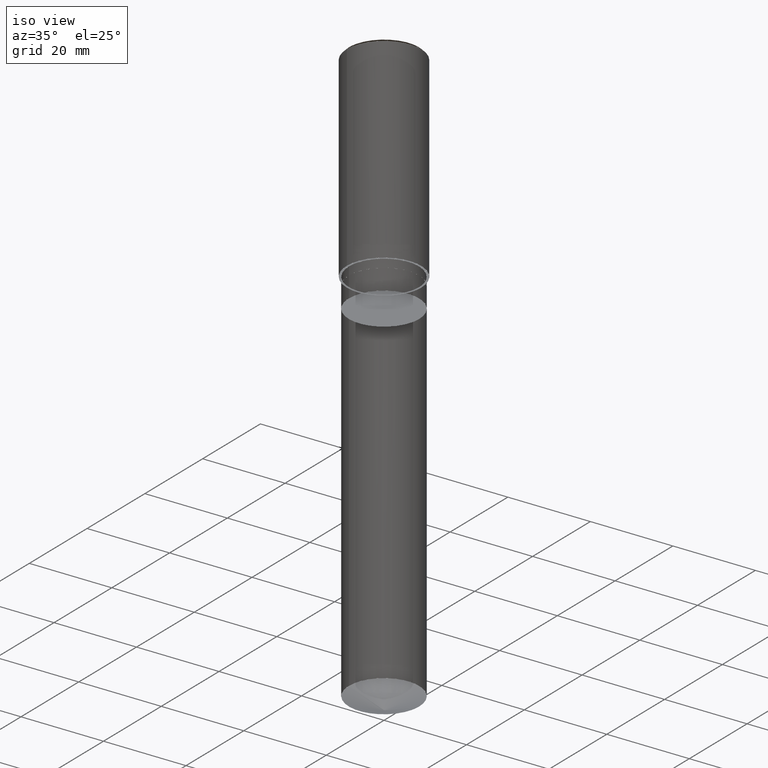
[diagram: clean part render]
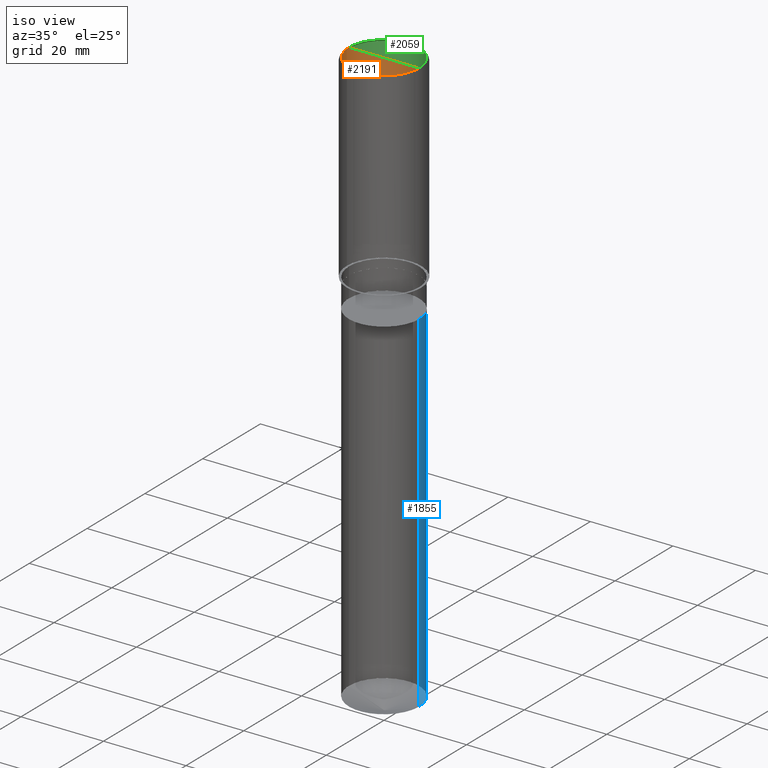
[diagram: same view with three faces highlighted in distinct colors, each labeled with its STEP entity id]
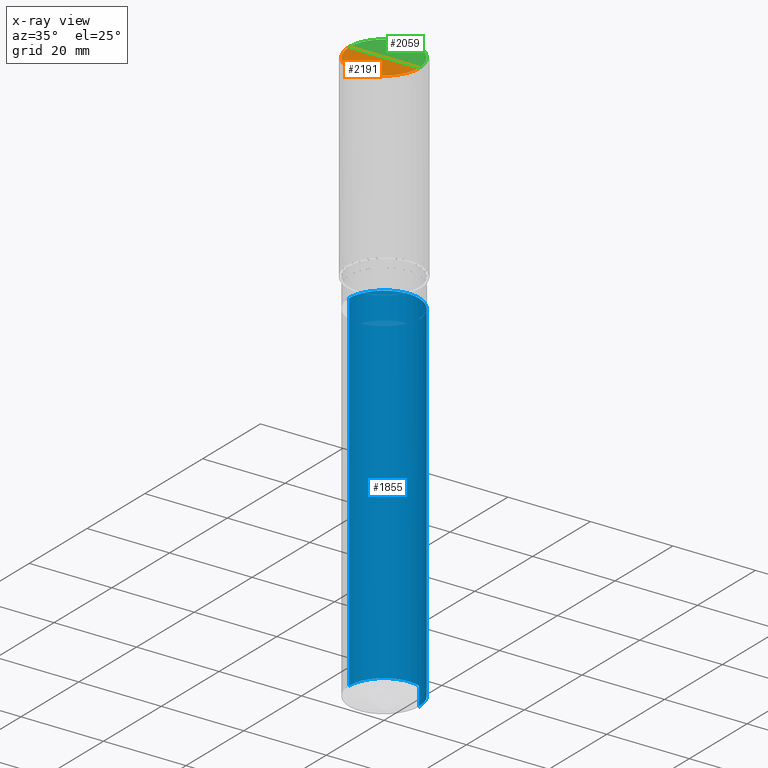
[diagram: x-ray of the same camera — body ghosted, the three highlighted faces saturated]
A machine part, iso view with three faces highlighted in distinct colors.
The next image is the same camera in x-ray (body ghosted, the three faces saturated) — at least one of them is partly hidden behind the body in this view.
Their STEP definitions:

[orange] entity #2191 — the highlighted face is a freeform B-spline surface patch.
#1794=CARTESIAN_POINT('',(8.5,0.0,48.0));
#1798=CARTESIAN_POINT('',(-8.5,0.0,48.0));
#1799=CARTESIAN_POINT('',(0.0,0.0,48.0));
#1812=CARTESIAN_POINT('',(-8.5,-8.5,48.0));
#1813=CARTESIAN_POINT('',(0.0,-8.5,48.0));
#1814=CARTESIAN_POINT('',(8.5,-8.5,48.0));
#2176=(
BOUNDED_SURFACE()
B_SPLINE_SURFACE(1,2,(
(#1798,#1812,#1813,#1814,#1794),
(#1799,#1799,#1799,#1799,#1799)
), .UNSPECIFIED.,.F.,.F.,.F.)
B_SPLINE_SURFACE_WITH_KNOTS((2,2),(3,2,3),(
0.0,1.0),(
0.0,0.5,1.0), .UNSPECIFIED.)
GEOMETRIC_REPRESENTATION_ITEM()
RATIONAL_B_SPLINE_SURFACE(((1.0,0.707106781187,1.0,0.707106781187,1.0),
(1.0,0.707106781187,1.0,0.707106781187,1.0)
))
REPRESENTATION_ITEM('')
SURFACE()
);
#2177=(
BOUNDED_CURVE()
B_SPLINE_CURVE(2,(#1794,#1814,#1813,#1812,#1798),.UNSPECIFIED.,.F.,.F.)
B_SPLINE_CURVE_WITH_KNOTS((3,2,3),
(0.0,0.5,1.0),.UNSPECIFIED.)
CURVE()
GEOMETRIC_REPRESENTATION_ITEM()
RATIONAL_B_SPLINE_CURVE((1.0,0.707106781187,1.0,0.707106781187,1.0))
REPRESENTATION_ITEM('')
);
#2178=(
BOUNDED_CURVE()
B_SPLINE_CURVE(1,(#1798,#1799),.UNSPECIFIED.,.F.,.F.)
B_SPLINE_CURVE_WITH_KNOTS((2,2),
(0.0,1.0),.UNSPECIFIED.)
CURVE()
GEOMETRIC_REPRESENTATION_ITEM()
RATIONAL_B_SPLINE_CURVE((1.0,1.0))
REPRESENTATION_ITEM('')
);
#2179=(
BOUNDED_CURVE()
B_SPLINE_CURVE(1,(#1799,#1794),.UNSPECIFIED.,.F.,.F.)
B_SPLINE_CURVE_WITH_KNOTS((2,2),
(0.0,1.0),.UNSPECIFIED.)
CURVE()
GEOMETRIC_REPRESENTATION_ITEM()
RATIONAL_B_SPLINE_CURVE((1.0,1.0))
REPRESENTATION_ITEM('')
);
#2180=VERTEX_POINT('',#1794);
#2181=VERTEX_POINT('',#1798);
#2182=VERTEX_POINT('',#1799);
#2183=EDGE_CURVE('',#2180,#2181,#2177,.T.);
#2184=EDGE_CURVE('',#2181,#2182,#2178,.T.);
#2185=EDGE_CURVE('',#2182,#2180,#2179,.T.);
#2186=ORIENTED_EDGE('',*,*,#2183,.T.);
#2187=ORIENTED_EDGE('',*,*,#2184,.T.);
#2188=ORIENTED_EDGE('',*,*,#2185,.T.);
#2189=EDGE_LOOP('',(#2186,#2187,#2188));
#2190=FACE_OUTER_BOUND('',#2189,.T.);
#2191=ADVANCED_FACE('',(#2190),#2176,.T.);

[blue] entity #1855 — the highlighted face is a freeform B-spline surface patch.
#1757=CARTESIAN_POINT('',(8.5,0.0,-91.906253008737));
#1758=CARTESIAN_POINT('',(8.5,8.5,-91.906253008737));
#1759=CARTESIAN_POINT('',(0.0,8.5,-91.906253008737));
#1760=CARTESIAN_POINT('',(-8.5,8.5,-91.906253008737));
#1761=CARTESIAN_POINT('',(-8.5,0.0,-91.906253008737));
#1762=CARTESIAN_POINT('',(8.5,0.0,-7.0));
#1763=CARTESIAN_POINT('',(8.5,8.5,-7.0));
#1764=CARTESIAN_POINT('',(0.0,8.5,-7.0));
#1765=CARTESIAN_POINT('',(-8.5,8.5,-7.0));
#1766=CARTESIAN_POINT('',(-8.5,0.0,-7.0));
#1836=(
BOUNDED_SURFACE()
B_SPLINE_SURFACE(1,2,(
(#1757,#1758,#1759,#1760,#1761),
(#1762,#1763,#1764,#1765,#1766)
), .UNSPECIFIED.,.F.,.F.,.F.)
B_SPLINE_SURFACE_WITH_KNOTS((2,2),(3,2,3),(
0.0,1.0),(
0.0,0.5,1.0), .UNSPECIFIED.)
GEOMETRIC_REPRESENTATION_ITEM()
RATIONAL_B_SPLINE_SURFACE(((1.0,0.707106781187,1.0,0.707106781187,1.0),
(1.0,0.707106781187,1.0,0.707106781187,1.0)
))
REPRESENTATION_ITEM('')
SURFACE()
);
#1837=(
BOUNDED_CURVE()
B_SPLINE_CURVE(2,(#1761,#1760,#1759,#1758,#1757),.UNSPECIFIED.,.F.,.F.)
B_SPLINE_CURVE_WITH_KNOTS((3,2,3),
(0.0,0.5,1.0),.UNSPECIFIED.)
CURVE()
GEOMETRIC_REPRESENTATION_ITEM()
RATIONAL_B_SPLINE_CURVE((1.0,0.707106781187,1.0,0.707106781187,1.0))
REPRESENTATION_ITEM('')
);
#1838=(
BOUNDED_CURVE()
B_SPLINE_CURVE(1,(#1757,#1762),.UNSPECIFIED.,.F.,.F.)
B_SPLINE_CURVE_WITH_KNOTS((2,2),
(0.0,1.0),.UNSPECIFIED.)
CURVE()
GEOMETRIC_REPRESENTATION_ITEM()
RATIONAL_B_SPLINE_CURVE((1.0,1.0))
REPRESENTATION_ITEM('')
);
#1839=(
BOUNDED_CURVE()
B_SPLINE_CURVE(2,(#1762,#1763,#1764,#1765,#1766),.UNSPECIFIED.,.F.,.F.)
B_SPLINE_CURVE_WITH_KNOTS((3,2,3),
(0.0,0.5,1.0),.UNSPECIFIED.)
CURVE()
GEOMETRIC_REPRESENTATION_ITEM()
RATIONAL_B_SPLINE_CURVE((1.0,0.707106781187,1.0,0.707106781187,1.0))
REPRESENTATION_ITEM('')
);
#1840=(
BOUNDED_CURVE()
B_SPLINE_CURVE(1,(#1766,#1761),.UNSPECIFIED.,.F.,.F.)
B_SPLINE_CURVE_WITH_KNOTS((2,2),
(0.0,1.0),.UNSPECIFIED.)
CURVE()
GEOMETRIC_REPRESENTATION_ITEM()
RATIONAL_B_SPLINE_CURVE((1.0,1.0))
REPRESENTATION_ITEM('')
);
#1841=VERTEX_POINT('',#1757);
#1842=VERTEX_POINT('',#1761);
#1843=VERTEX_POINT('',#1762);
#1844=VERTEX_POINT('',#1766);
#1845=EDGE_CURVE('',#1842,#1841,#1837,.T.);
#1846=EDGE_CURVE('',#1841,#1843,#1838,.T.);
#1847=EDGE_CURVE('',#1843,#1844,#1839,.T.);
#1848=EDGE_CURVE('',#1844,#1842,#1840,.T.);
#1849=ORIENTED_EDGE('',*,*,#1845,.T.);
#1850=ORIENTED_EDGE('',*,*,#1846,.T.);
#1851=ORIENTED_EDGE('',*,*,#1847,.T.);
#1852=ORIENTED_EDGE('',*,*,#1848,.T.);
#1853=EDGE_LOOP('',(#1849,#1850,#1851,#1852));
#1854=FACE_OUTER_BOUND('',#1853,.T.);
#1855=ADVANCED_FACE('',(#1854),#1836,.T.);

[green] entity #2059 — the highlighted face is a freeform B-spline surface patch.
#1794=CARTESIAN_POINT('',(8.5,0.0,48.0));
#1795=CARTESIAN_POINT('',(8.5,8.5,48.0));
#1796=CARTESIAN_POINT('',(0.0,8.5,48.0));
#1797=CARTESIAN_POINT('',(-8.5,8.5,48.0));
#1798=CARTESIAN_POINT('',(-8.5,0.0,48.0));
#1799=CARTESIAN_POINT('',(0.0,0.0,48.0));
#2044=(
BOUNDED_SURFACE()
B_SPLINE_SURFACE(1,2,(
(#1794,#1795,#1796,#1797,#1798),
(#1799,#1799,#1799,#1799,#1799)
), .UNSPECIFIED.,.F.,.F.,.F.)
B_SPLINE_SURFACE_WITH_KNOTS((2,2),(3,2,3),(
0.0,1.0),(
0.0,0.5,1.0), .UNSPECIFIED.)
GEOMETRIC_REPRESENTATION_ITEM()
RATIONAL_B_SPLINE_SURFACE(((1.0,0.707106781187,1.0,0.707106781187,1.0),
(1.0,0.707106781187,1.0,0.707106781187,1.0)
))
REPRESENTATION_ITEM('')
SURFACE()
);
#2045=(
BOUNDED_CURVE()
B_SPLINE_CURVE(2,(#1798,#1797,#1796,#1795,#1794),.UNSPECIFIED.,.F.,.F.)
B_SPLINE_CURVE_WITH_KNOTS((3,2,3),
(0.0,0.5,1.0),.UNSPECIFIED.)
CURVE()
GEOMETRIC_REPRESENTATION_ITEM()
RATIONAL_B_SPLINE_CURVE((1.0,0.707106781187,1.0,0.707106781187,1.0))
REPRESENTATION_ITEM('')
);
#2046=(
BOUNDED_CURVE()
B_SPLINE_CURVE(1,(#1794,#1799),.UNSPECIFIED.,.F.,.F.)
B_SPLINE_CURVE_WITH_KNOTS((2,2),
(0.0,1.0),.UNSPECIFIED.)
CURVE()
GEOMETRIC_REPRESENTATION_ITEM()
RATIONAL_B_SPLINE_CURVE((1.0,1.0))
REPRESENTATION_ITEM('')
);
#2047=(
BOUNDED_CURVE()
B_SPLINE_CURVE(1,(#1799,#1798),.UNSPECIFIED.,.F.,.F.)
B_SPLINE_CURVE_WITH_KNOTS((2,2),
(0.0,1.0),.UNSPECIFIED.)
CURVE()
GEOMETRIC_REPRESENTATION_ITEM()
RATIONAL_B_SPLINE_CURVE((1.0,1.0))
REPRESENTATION_ITEM('')
);
#2048=VERTEX_POINT('',#1794);
#2049=VERTEX_POINT('',#1798);
#2050=VERTEX_POINT('',#1799);
#2051=EDGE_CURVE('',#2049,#2048,#2045,.T.);
#2052=EDGE_CURVE('',#2048,#2050,#2046,.T.);
#2053=EDGE_CURVE('',#2050,#2049,#2047,.T.);
#2054=ORIENTED_EDGE('',*,*,#2051,.T.);
#2055=ORIENTED_EDGE('',*,*,#2052,.T.);
#2056=ORIENTED_EDGE('',*,*,#2053,.T.);
#2057=EDGE_LOOP('',(#2054,#2055,#2056));
#2058=FACE_OUTER_BOUND('',#2057,.T.);
#2059=ADVANCED_FACE('',(#2058),#2044,.T.);